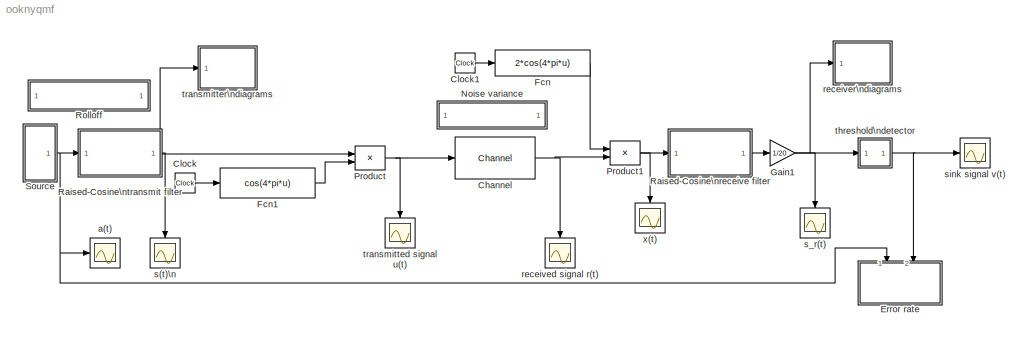
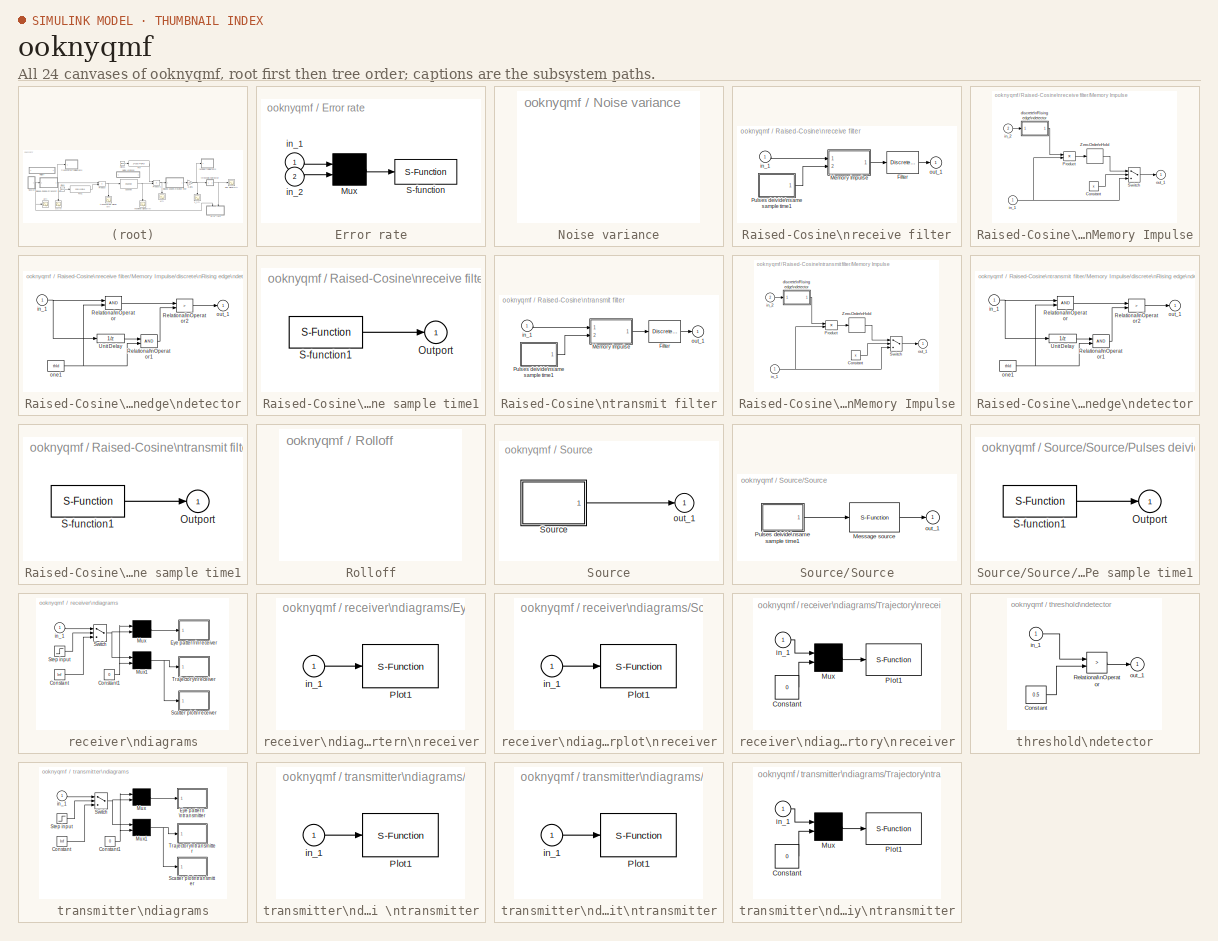
[diagram: thumbnail index - all 24 canvases of the model, root first then tree order]
MODEL ooknyqmf
KIND model
CONFIG AbsTol = 1e-6
CONFIG FixedStep = auto
CONFIG MaxStep = 0.05
CONFIG MinStep = 0.000001
CONFIG RelTol = 1e-6
CONFIG Solver = ode45
CONFIG SolverMode = Auto
CONFIG StartTime = 0.0
CONFIG StopTime = 999999
BLOCK [Reference] Channel  REF=librnew/Channel  (lib defined in mdl_aba7bc8d2a37)
  Ports = [1, 1]
  SourceBlock = librnew/Channel
  SourceType = AWGN channel, fixed parameter
  m = 0
  s = 12345
  variance = 0.001
BLOCK [Clock] Clock
  Decimation = 10
BLOCK [Clock] Clock1
  Decimation = 10
BLOCK [SubSystem] Error rate
  MaskCallbackString = |||
  MaskDescription = Use the input data from the 1st port as the reference signal to detect the number of errors and error rate of the 2nd signal.
  MaskDisplay = disp('Error\\nmeter')
  MaskEnableString = on,on,on,on
  MaskHelp = The signal from the first port must be a scalar. The second input port can be a vector with a delay to the first port signal. The comparison happens only at the sampling point.
  MaskIconFrame = on
  MaskIconOpaque = on
  MaskIconRotate = none
  MaskIconUnits = autoscale
  MaskInitialization = K=@1;num_lin=@2;TDelay=@3;Sample=@4;
  MaskPromptString = Bit per symbol:|Number of digits on display:|Delay between 1st port and 2nd port:|Sample time (sec):
  MaskStyleString = edit,edit,edit,edit
  MaskToolTipString = on,on,on,on
  MaskTunableValueString = on,on,on,on
  MaskType = Symbol/bit error counter
  MaskValueString = 1|10|12|1
  MaskVarAliasString = ,,,
  MaskVisibilityString = on,on,on,on
  Ports = [2]
  ShowPortLabels = off
  TreatAsAtomicUnit = off
BLOCK [Mux] Error rate/Mux
  Inputs = 2
  Ports = [2, 1]
BLOCK [S-Function] Error rate/S-function
  FunctionName = sbiterr
  Parameters = num_lin, K, TDelay, Sample
  Ports = [1, 1]
BLOCK [Inport] Error rate/in_1
BLOCK [Inport] Error rate/in_2
  Port = 2
BLOCK [Fcn] Fcn
  Expr = 2*cos(4*pi*u)
BLOCK [Fcn] Fcn1
  Expr = cos(4*pi*u)
BLOCK [Gain] Gain1
  Gain = 1/20
BLOCK [SubSystem] Noise variance
  MaskDisplay = disp('Noise variance')
  MaskIconFrame = on
  MaskIconOpaque = on
  MaskIconRotate = none
  MaskIconUnits = autoscale
  MaskType = noise
  OpenFcn = setnoise
  Ports = []
  ShowPortLabels = off
  TreatAsAtomicUnit = off
BLOCK [Product] Product
  Ports = [2, 1]
BLOCK [Product] Product1
  Ports = [2, 1]
BLOCK [SubSystem] Raised-Cosine\nreceive filter
  MaskCallbackString = |||||
  MaskDescription = Design a raised cosine filter and use it to filter the input signal.
  MaskDisplay = disp('R-C\\nfilter')
  MaskEnableString = on,on,on,on,on,on
  MaskHelp = This block designs a raised cosine filter using the specified parameter. The filter is used to filter the input signal. You can optionally use the sinc filter in the filtering computation.
  MaskIconFrame = on
  MaskIconOpaque = on
  MaskIconRotate = none
  MaskIconUnits = autoscale
  MaskInitialization = td=@1;if length(td)>1,off=td(2);td=td(1);else,off=0;end;ts=@2;R=@3;delay=@4;fil=@5;[num,den]=rcosine(1/td(1),1/ts(1),fil,R,delay);x=@6/2;
  MaskPromptString = Symbol interval (sec):|Computation sampling time (sec):|Filter rolloff factor:|Delay step (integer to multiply symbol interval):|Filter type (FIR or IIR) / (Normal or Sqrt):|With or without sinc filter (1 or 0, suggest 1):
  MaskStyleString = edit,edit,edit,edit,edit,edit
  MaskToolTipString = on,on,on,on,on,on
  MaskTunableValueString = on,on,on,on,on,on
  MaskType = R-C filter
  MaskValueString = 1|.05|0.82|6|'FIR'|0
  MaskVarAliasString = ,,,,,
  MaskVisibilityString = on,on,on,on,on,on
  Ports = [1, 1]
  ShowPortLabels = off
  TreatAsAtomicUnit = off
BLOCK [DiscreteFilter] Raised-Cosine\nreceive filter/Filter
  Denominator = den
  Numerator = num
  SampleTime = ts
BLOCK [SubSystem] Raised-Cosine\nreceive filter/Memory Impulse
  MaskCallbackString = |
  MaskDescription = 1/sinc filter:
  MaskDisplay = disp('1/sinc')
  MaskEnableString = on,on
  MaskHelp = When the threshold is greater than zero, this block outputs an impulse signal, which begins at the raising edge of the second input and lasts the holding time. The impulse holds a constant amplitude, which equals the amplitude of the first input at the begining of the impulse. A clock raising edge will trigger next impulse. When the threshold is less or equal to zero, this block faithfully outputs...<+17ch>
  MaskIconFrame = on
  MaskIconOpaque = on
  MaskIconRotate = none
  MaskIconUnits = autoscale
  MaskInitialization = ts=@1;thr=@2;x=thr>0;
  MaskPromptString = Holding time:|Threshold for clock pulse:
  MaskStyleString = edit,edit
  MaskToolTipString = on,on
  MaskTunableValueString = on,on
  MaskType = Impulse
  MaskValueString = ts|x
  MaskVarAliasString = ,
  MaskVisibilityString = on,on
  Ports = [2, 1]
  ShowPortLabels = off
  TreatAsAtomicUnit = off
BLOCK [Constant] Raised-Cosine\nreceive filter/Memory Impulse/Constant
  Value = x
BLOCK [Product] Raised-Cosine\nreceive filter/Memory Impulse/Product
  Ports = [2, 1]
BLOCK [Switch] Raised-Cosine\nreceive filter/Memory Impulse/Switch
  Threshold = .5
BLOCK [ZeroOrderHold] Raised-Cosine\nreceive filter/Memory Impulse/Zero-Order\nHold
  SampleTime = ts
BLOCK [SubSystem] Raised-Cosine\nreceive filter/Memory Impulse/discrete\nRising edge\ndetector
  MaskCallbackString = |
  MaskDescription = Rising edge detection:
  MaskDisplay = disp('Edge\\nDetector')
  MaskEnableString = on,on
  MaskHelp = When the input signal rising edge passed the given shreshold, this block outputs one, otherwise outputs zero.
  MaskIconFrame = on
  MaskIconOpaque = on
  MaskIconRotate = none
  MaskIconUnits = autoscale
  MaskInitialization = thld=@1;ts=@2;
  MaskPromptString = Threshold:|Sampling time:
  MaskStyleString = edit,edit
  MaskToolTipString = on,on
  MaskTunableValueString = on,on
  MaskType = Edge Detection
  MaskValueString = thr|ts
  MaskVarAliasString = ,
  MaskVisibilityString = on,on
  Ports = [1, 1]
  ShowPortLabels = off
  TreatAsAtomicUnit = off
BLOCK [RelationalOperator] Raised-Cosine\nreceive filter/Memory Impulse/discrete\nRising edge\ndetector/Relational\nOperator
BLOCK [RelationalOperator] Raised-Cosine\nreceive filter/Memory Impulse/discrete\nRising edge\ndetector/Relational\nOperator1
BLOCK [RelationalOperator] Raised-Cosine\nreceive filter/Memory Impulse/discrete\nRising edge\ndetector/Relational\nOperator2
  Operator = >
BLOCK [UnitDelay] Raised-Cosine\nreceive filter/Memory Impulse/discrete\nRising edge\ndetector/Unit Delay
  SampleTime = ts
BLOCK [Inport] Raised-Cosine\nreceive filter/Memory Impulse/discrete\nRising edge\ndetector/in_1
BLOCK [Constant] Raised-Cosine\nreceive filter/Memory Impulse/discrete\nRising edge\ndetector/one1
  Value = thld
BLOCK [Outport] Raised-Cosine\nreceive filter/Memory Impulse/discrete\nRising edge\ndetector/out_1
BLOCK [Inport] Raised-Cosine\nreceive filter/Memory Impulse/in_1
BLOCK [Inport] Raised-Cosine\nreceive filter/Memory Impulse/in_2
  Port = 2
BLOCK [Outport] Raised-Cosine\nreceive filter/Memory Impulse/out_1
BLOCK [SubSystem] Raised-Cosine\nreceive filter/Pulses deivide\nsame sample time1
  MaskCallbackString = ||
  MaskDescription = Vector pulses with sample rate of each pulse as Sample_time ./Divider.
  MaskDisplay = disp('Vector\\nPulse')
  MaskEnableString = on,on,on
  MaskHelp = This block generator a vector pulses. The output length is the same as the vector defined in \"Divider\". The ith element of the output has the sample time Sample_time/Divider(i). All elements in \"Divider\" must be integers.  <repeated x3 — deduplicated; at blocks: Pulses deivide\nsame sample time1>
  MaskIconFrame = on
  MaskIconOpaque = on
  MaskIconRotate = none
  MaskIconUnits = autoscale
  MaskInitialization = samp_time=@1;out_divid=@2;offset=@3;
  MaskPromptString = Sample time (scalar, sec):|Divider (integer vector):|Offset (have same dimension as Divider:
  MaskStyleString = edit,edit,edit
  MaskToolTipString = on,on,on
  MaskTunableValueString = on,on,on
  MaskType = Pulse generator
  MaskValueString = td|1|off
  MaskVarAliasString = ,,
  MaskVisibilityString = on,on,on
  Ports = [0, 1]
  ShowPortLabels = off
  TreatAsAtomicUnit = off
BLOCK [Outport] Raised-Cosine\nreceive filter/Pulses deivide\nsame sample time1/Outport
BLOCK [S-Function] Raised-Cosine\nreceive filter/Pulses deivide\nsame sample time1/S-function1
  FunctionName = homopuls
  Parameters = samp_time, out_divid, offset
  Ports = [1, 1]
BLOCK [Inport] Raised-Cosine\nreceive filter/in_1
BLOCK [Outport] Raised-Cosine\nreceive filter/out_1
BLOCK [SubSystem] Raised-Cosine\ntransmit filter
  MaskCallbackString = |||||
  MaskDescription = Design a raised cosine filter and use it to filter the input signal.
  MaskDisplay = disp('R-C\\nfilter')
  MaskEnableString = on,on,on,on,on,on
  MaskHelp = This block designs a raised cosine filter using the specified parameter. The filter is used to filter the input signal. You can optionally use the sinc filter in the filtering computation.
  MaskIconFrame = on
  MaskIconOpaque = on
  MaskIconRotate = none
  MaskIconUnits = autoscale
  MaskInitialization = td=@1;if length(td)>1,off=td(2);td=td(1);else,off=0;end;ts=@2;R=@3;delay=@4;fil=@5;[num,den]=rcosine(1/td(1),1/ts(1),fil,R,delay);x=@6/2;
  MaskPromptString = Symbol interval (sec):|Computation sampling time (sec):|Filter rolloff factor:|Delay step (integer to multiply symbol interval):|Filter type (FIR or IIR) / (Normal or Sqrt):|With or without sinc filter (1 or 0, suggest 1):
  MaskStyleString = edit,edit,edit,edit,edit,edit
  MaskToolTipString = on,on,on,on,on,on
  MaskTunableValueString = on,on,on,on,on,on
  MaskType = R-C filter
  MaskValueString = 1|.05|0.82|6|'FIR'|1
  MaskVarAliasString = ,,,,,
  MaskVisibilityString = on,on,on,on,on,on
  Ports = [1, 1]
  ShowPortLabels = off
  TreatAsAtomicUnit = off
BLOCK [DiscreteFilter] Raised-Cosine\ntransmit filter/Filter
  Denominator = den
  Numerator = num
  SampleTime = ts
BLOCK [SubSystem] Raised-Cosine\ntransmit filter/Memory Impulse
  MaskCallbackString = |
  MaskDescription = 1/sinc filter:
  MaskDisplay = disp('1/sinc')
  MaskEnableString = on,on
  MaskHelp = When the threshold is greater than zero, this block outputs an impulse signal, which begins at the raising edge of the second input and lasts the holding time. The impulse holds a constant amplitude, which equals the amplitude of the first input at the begining of the impulse. A clock raising edge will trigger next impulse. When the threshold is less or equal to zero, this block faithfully outputs...<+17ch>
  MaskIconFrame = on
  MaskIconOpaque = on
  MaskIconRotate = none
  MaskIconUnits = autoscale
  MaskInitialization = ts=@1;thr=@2;x=thr>0;
  MaskPromptString = Holding time:|Threshold for clock pulse:
  MaskStyleString = edit,edit
  MaskToolTipString = on,on
  MaskTunableValueString = on,on
  MaskType = Impulse
  MaskValueString = ts|x
  MaskVarAliasString = ,
  MaskVisibilityString = on,on
  Ports = [2, 1]
  ShowPortLabels = off
  TreatAsAtomicUnit = off
BLOCK [Constant] Raised-Cosine\ntransmit filter/Memory Impulse/Constant
  Value = x
BLOCK [Product] Raised-Cosine\ntransmit filter/Memory Impulse/Product
  Ports = [2, 1]
BLOCK [Switch] Raised-Cosine\ntransmit filter/Memory Impulse/Switch
  Threshold = .5
BLOCK [ZeroOrderHold] Raised-Cosine\ntransmit filter/Memory Impulse/Zero-Order\nHold
  SampleTime = ts
BLOCK [SubSystem] Raised-Cosine\ntransmit filter/Memory Impulse/discrete\nRising edge\ndetector
  MaskCallbackString = |
  MaskDescription = Rising edge detection:
  MaskDisplay = disp('Edge\\nDetector')
  MaskEnableString = on,on
  MaskHelp = When the input signal rising edge passed the given shreshold, this block outputs one, otherwise outputs zero.
  MaskIconFrame = on
  MaskIconOpaque = on
  MaskIconRotate = none
  MaskIconUnits = autoscale
  MaskInitialization = thld=@1;ts=@2;
  MaskPromptString = Threshold:|Sampling time:
  MaskStyleString = edit,edit
  MaskToolTipString = on,on
  MaskTunableValueString = on,on
  MaskType = Edge Detection
  MaskValueString = thr|ts
  MaskVarAliasString = ,
  MaskVisibilityString = on,on
  Ports = [1, 1]
  ShowPortLabels = off
  TreatAsAtomicUnit = off
BLOCK [RelationalOperator] Raised-Cosine\ntransmit filter/Memory Impulse/discrete\nRising edge\ndetector/Relational\nOperator
BLOCK [RelationalOperator] Raised-Cosine\ntransmit filter/Memory Impulse/discrete\nRising edge\ndetector/Relational\nOperator1
BLOCK [RelationalOperator] Raised-Cosine\ntransmit filter/Memory Impulse/discrete\nRising edge\ndetector/Relational\nOperator2
  Operator = >
BLOCK [UnitDelay] Raised-Cosine\ntransmit filter/Memory Impulse/discrete\nRising edge\ndetector/Unit Delay
  SampleTime = ts
BLOCK [Inport] Raised-Cosine\ntransmit filter/Memory Impulse/discrete\nRising edge\ndetector/in_1
BLOCK [Constant] Raised-Cosine\ntransmit filter/Memory Impulse/discrete\nRising edge\ndetector/one1
  Value = thld
BLOCK [Outport] Raised-Cosine\ntransmit filter/Memory Impulse/discrete\nRising edge\ndetector/out_1
BLOCK [Inport] Raised-Cosine\ntransmit filter/Memory Impulse/in_1
BLOCK [Inport] Raised-Cosine\ntransmit filter/Memory Impulse/in_2
  Port = 2
BLOCK [Outport] Raised-Cosine\ntransmit filter/Memory Impulse/out_1
BLOCK [SubSystem] Raised-Cosine\ntransmit filter/Pulses deivide\nsame sample time1
  MaskCallbackString = ||
  MaskDescription = Vector pulses with sample rate of each pulse as Sample_time ./Divider.
  MaskDisplay = disp('Vector\\nPulse')
  MaskEnableString = on,on,on
  MaskIconFrame = on
  MaskIconOpaque = on
  MaskIconRotate = none
  MaskIconUnits = autoscale
  MaskInitialization = samp_time=@1;out_divid=@2;offset=@3;
  MaskPromptString = Sample time (scalar, sec):|Divider (integer vector):|Offset (have same dimension as Divider:
  MaskStyleString = edit,edit,edit
  MaskToolTipString = on,on,on
  MaskTunableValueString = on,on,on
  MaskType = Pulse generator
  MaskValueString = td|1|off
  MaskVarAliasString = ,,
  MaskVisibilityString = on,on,on
  Ports = [0, 1]
  ShowPortLabels = off
  TreatAsAtomicUnit = off
BLOCK [Outport] Raised-Cosine\ntransmit filter/Pulses deivide\nsame sample time1/Outport
BLOCK [S-Function] Raised-Cosine\ntransmit filter/Pulses deivide\nsame sample time1/S-function1
  FunctionName = homopuls
  Parameters = samp_time, out_divid, offset
  Ports = [1, 1]
BLOCK [Inport] Raised-Cosine\ntransmit filter/in_1
BLOCK [Outport] Raised-Cosine\ntransmit filter/out_1
BLOCK [SubSystem] Rolloff
  MaskDisplay = disp('Rolloff-Factor')
  MaskIconFrame = on
  MaskIconOpaque = on
  MaskIconRotate = none
  MaskIconUnits = autoscale
  MaskType = rolloff
  OpenFcn = setrobin
  Ports = []
  ShowPortLabels = off
  TreatAsAtomicUnit = off
BLOCK [SubSystem] Source
  Ports = [0, 1]
  ShowPortLabels = off
  TreatAsAtomicUnit = off
BLOCK [SubSystem] Source/Source
  MaskCallbackString = |||
  MaskDescription = Read from a workspace variable at\nsampling time point.
  MaskDisplay = plot(0,0,100,100,x,y);disp('Rd wksp')
  MaskEnableString = on,on,on,on
  MaskHelp = This block reads from a workspace variable at a given sample time. The column number is the block output vector length. When the simulation reaches the end of the variable (eof), the block will cyclically output from the first row of the variable or output zeros based on the repeat flag entree.
  MaskIconFrame = on
  MaskIconOpaque = on
  MaskIconRotate = none
  MaskIconUnits = autoscale
  MaskInitialization = var=@1;td=@2;ts=td(1);if (length(td)>=2),off=td(2);else off=0;end;cyc=@3;ini=@4;[x,y]=srcsicon(7);
  MaskPromptString = Variable (column_number=block_output_length):|Data output sample time (sec):|Repeat flag (1: repeat read, 0: output zeros after eof).|Initial output:
  MaskStyleString = edit,edit,edit,edit
  MaskToolTipString = on,on,on,on
  MaskTunableValueString = on,on,on,on
  MaskType = Read from workspace
  MaskValueString = randint(1000,1,2)|1|1|1
  MaskVarAliasString = ,,,
  MaskVisibilityString = on,on,on,on
  Ports = [0, 1]
  ShowPortLabels = off
  TreatAsAtomicUnit = off
BLOCK [S-Function] Source/Source/Message source
  FunctionName = trigwksp
  MaskCallbackString = |||
  MaskDescription = The raising edge of input pulse trigger the block output the next row from the workspace variable.
  MaskDisplay = disp('Triggered\\nread')
  MaskEnableString = on,on,on,on
  MaskHelp = This block reads the data from a workspace variable. The output is refreshed at the raising edge of the input pulse.
  MaskIconFrame = on
  MaskIconOpaque = on
  MaskIconRotate = none
  MaskIconUnits = autoscale
  MaskInitialization = var=@1;thd=@2;cyclFlag=@3;ini=@4;
  MaskPromptString = Read the variable:|Threshold for the input pulse:|Cyclic read variable (1) or amend zeros (0).|Output before first trigger:
  MaskStyleString = edit,edit,edit,edit
  MaskToolTipString = on,on,on,on
  MaskTunableValueString = on,on,on,on
  MaskType = Read from workspace
  MaskValueString = var|.1|cyc|ini
  MaskVarAliasString = ,,,
  MaskVisibilityString = on,on,on,on
  Parameters = var,thd,cyclFlag,ini
  Ports = [1, 1]
BLOCK [SubSystem] Source/Source/Pulses deivide\nsame sample time1
  MaskCallbackString = ||
  MaskDescription = Vector pulses with sample rate of each pulse as Sample_time ./Divider.
  MaskDisplay = disp('Vector\\nPulse')
  MaskEnableString = on,on,on
  MaskIconFrame = on
  MaskIconOpaque = on
  MaskIconRotate = none
  MaskIconUnits = autoscale
  MaskInitialization = samp_time=@1;out_divid=@2;offset=@3;
  MaskPromptString = Sample time (scalar, sec):|Divider (integer vector):|Offset (have same dimension as Divider:
  MaskStyleString = edit,edit,edit
  MaskToolTipString = on,on,on
  MaskTunableValueString = on,on,on
  MaskType = Pulse generator
  MaskValueString = ts|1|off
  MaskVarAliasString = ,,
  MaskVisibilityString = on,on,on
  Ports = [0, 1]
  ShowPortLabels = off
  TreatAsAtomicUnit = off
BLOCK [Outport] Source/Source/Pulses deivide\nsame sample time1/Outport
BLOCK [S-Function] Source/Source/Pulses deivide\nsame sample time1/S-function1
  FunctionName = homopuls
  Parameters = samp_time, out_divid, offset
  Ports = [0, 1]
BLOCK [Outport] Source/Source/out_1
BLOCK [Outport] Source/out_1
BLOCK [Scope] a(t)
  DataFormat = Array
  NumInputPorts = 1
  Ports = [1]
  TimeRange = 25.000000
  YMax = 2
  YMin = -2
BLOCK [Scope] received signal r(t)
  DataFormat = Array
  NumInputPorts = 1
  Ports = [1]
  TimeRange = 25.000000
  YMax = 2
  YMin = -2
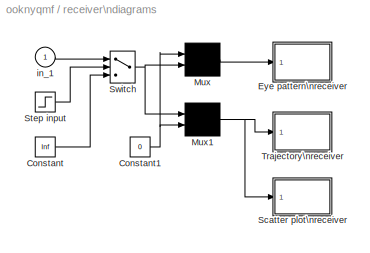
BLOCK [SubSystem] receiver\ndiagrams
  MaskCallbackString = ||
  MaskDescription = Eye pattern, signal space trajectory and scatter plot.
  MaskDisplay = plot(0,0,100,100,x,y)
  MaskEnableString = on,on,on
  MaskIconFrame = on
  MaskIconOpaque = on
  MaskIconRotate = none
  MaskIconUnits = autoscale
  MaskInitialization = [x, y] = srcsicon(10);
  MaskPromptString = Plot start time:|Samples per time slot (2*T):|Decision offset:
  MaskStyleString = edit,edit,edit
  MaskToolTipString = on,on,on
  MaskTunableValueString = on,on,on
  MaskType = Diagrams
  MaskValueString = 12|40|0
  MaskVarAliasString = ,,
  MaskVariables = starttime=@1;anzahl=@2;offset=@3;
  MaskVisibilityString = on,on,on
  Ports = [1]
  ShowPortLabels = off
  TreatAsAtomicUnit = off
BLOCK [Constant] receiver\ndiagrams/Constant
  Value = Inf
BLOCK [Constant] receiver\ndiagrams/Constant1
  Value = 0
BLOCK [SubSystem] receiver\ndiagrams/Eye pattern\nreceiver
  CopyFcn = eyesampl([],[],[],'CopyBlock')
  DeleteFcn = eyesampl([],[],[],'DeleteBlock')
  LoadFcn = eyesampl([],[],[],'LoadBlock')
  MaskCallbackString = |||||
  MaskDescription = Produce eye-pattern diagram and/or scatter plot.
  MaskDisplay = plot(0,0,100,100,x,y);
  MaskEnableString = on,on,on,on,on,on
  MaskHelp = This plot opens one, or two plots by assigning the line type parameters. The scatter plot point is selected by the decision point in the first parameter entry. A decision line is drawn in the eye-pattern diagram. The plot is updated at the plot update sample time point.  <repeated x4 — deduplicated; at blocks: Eye pattern\nreceiver, Scatter plot\nreceiver, Eye pattern \ntransmitter, Scatter plot\ntransmitter>
  MaskIconFrame = on
  MaskIconOpaque = on
  MaskIconRotate = none
  MaskIconUnits = autoscale
  MaskInitialization = time_range=@1;boundary=@2;kept_length=@3;eye_line=@4;scatter_line=@5;two_d_line=@6;[x,y]=srcsicon(10);
  MaskPromptString = [Symbol interval, plot offset, decision point offset]:|Lower and upper bound of in-coming signal (1x2 vector):|Number of saved traces:|Line-type for eye-pattern diagram (0 for no plot):|Line-type for scatter plot (0 for no plot):|Plot update sample time:  <repeated x4 — deduplicated; at blocks: Eye pattern\nreceiver, Scatter plot\nreceiver, Eye pattern \ntransmitter, Scatter plot\ntransmitter>
  MaskStyleString = edit,edit,edit,edit,edit,edit
  MaskToolTipString = on,on,on,on,on,on
  MaskTunableValueString = on,on,on,on,on,on
  MaskType = Eye-diagram/scatter plot
  MaskValueString = [2 0 1+offset]|[-1.5 1.5]|0|'w-/r-'|0|2/anzahl
  MaskVarAliasString = ,,,,,
  MaskVisibilityString = on,on,on,on,on,on
  NameChangeFcn = eyesampl([],[],[],'NameChange')
  Ports = [1]
  ShowPortLabels = off
  StartFcn = eyesampl([],[],[],'Start')
  StopFcn = eyesampl([],[],[],'Stop')
  TreatAsAtomicUnit = off
BLOCK [S-Function] receiver\ndiagrams/Eye pattern\nreceiver/Plot1
  FunctionName = eyesampl
  Parameters = time_range, boundary, kept_length, eye_line, scatter_line, two_d_line
  Ports = [1]
BLOCK [Inport] receiver\ndiagrams/Eye pattern\nreceiver/in_1
BLOCK [Mux] receiver\ndiagrams/Mux
  Inputs = 2
  Ports = [2, 1]
BLOCK [Mux] receiver\ndiagrams/Mux1
  Inputs = 2
  Ports = [2, 1]
BLOCK [SubSystem] receiver\ndiagrams/Scatter plot\nreceiver
  CopyFcn = eyesampl([],[],[],'CopyBlock')
  DeleteFcn = eyesampl([],[],[],'DeleteBlock')
  LoadFcn = eyesampl([],[],[],'LoadBlock')
  MaskCallbackString = |||||
  MaskDescription = Produce eye-pattern diagram and/or scatter plot.
  MaskDisplay = plot(0,0,100,100,x,y);
  MaskEnableString = on,on,on,on,on,on
  MaskIconFrame = on
  MaskIconOpaque = on
  MaskIconRotate = none
  MaskIconUnits = autoscale
  MaskInitialization = time_range=@1;boundary=@2;kept_length=@3;eye_line=@4;scatter_line=@5;two_d_line=@6;[x,y]=srcsicon(10);
  MaskStyleString = edit,edit,edit,edit,edit,edit
  MaskToolTipString = on,on,on,on,on,on
  MaskTunableValueString = on,on,on,on,on,on
  MaskType = Eye-diagram/scatter plot
  MaskValueString = [1 .5 .999]|[-1.5 1.5]|0|0|'b.'|[.5 offset]
  MaskVarAliasString = ,,,,,
  MaskVisibilityString = on,on,on,on,on,on
  NameChangeFcn = eyesampl([],[],[],'NameChange')
  Ports = [1]
  ShowPortLabels = off
  StartFcn = eyesampl([],[],[],'Start')
  StopFcn = eyesampl([],[],[],'Stop')
  TreatAsAtomicUnit = off
BLOCK [S-Function] receiver\ndiagrams/Scatter plot\nreceiver/Plot1
  FunctionName = eyesampl
  Parameters = time_range, boundary, kept_length, eye_line, scatter_line, two_d_line
  Ports = [1]
BLOCK [Inport] receiver\ndiagrams/Scatter plot\nreceiver/in_1
BLOCK [Step] receiver\ndiagrams/Step input
  SampleTime = 1
  Time = starttime
BLOCK [Switch] receiver\ndiagrams/Switch
  Threshold = 1
BLOCK [SubSystem] receiver\ndiagrams/Trajectory\nreceiver
  CopyFcn = eyediasi([],[],[],'CopyBlock')
  DeleteFcn = eyediasi([],[],[],'DeleteBlock')
  LoadFcn = eyediasi([],[],[],'LoadBlock')
  MaskCallbackString = |||||
  MaskDescription = Produce eye-pattern diagram/scatter\nplot/x-y plot with the rising edge of the second input as the decision line.
  MaskDisplay = plot(0,0,100,100,x,y,v,w);
  MaskEnableString = on,on,on,on,on,on
  MaskHelp = This plot opens one, two, or three plots by assigning the line type parameters. The scatter plot point is selected by the rising edge of a trigger signal. A decision line is drawn at the rising edge of the trigger signal.
  MaskIconFrame = on
  MaskIconOpaque = on
  MaskIconRotate = none
  MaskIconUnits = autoscale
  MaskInitialization = time_range=@1;boundary=@2;kept_length=@3;eye_line=@4;scatter_line=@5;two_d_line=@6;[x,y]=srcsicon(10);[v,w]=trigicon(0,25,get_param(gcb,'orientation'),2);
  MaskPromptString = Eye-pattern plot time frame:|Lower and upper bound of in-coming signal (1x2 vector):|Number of saved traces:|Line-type for eye-pattern diagram (0 for no plot):|Line-type for scatter plot (0 for no plot):|Line-type for x-y plot (0 for no plot):
  MaskStyleString = edit,edit,edit,edit,edit,edit
  MaskToolTipString = on,on,on,on,on,on
  MaskTunableValueString = on,on,on,on,on,on
  MaskType = Eye-diagram/scatter plot
  MaskValueString = [2 0 1]|[-1.5 1.5]|0|0|0|'g-'
  MaskVarAliasString = ,,,,,
  MaskVisibilityString = on,on,on,on,on,on
  NameChangeFcn = eyediasi([],[],[],'NameChange')
  Ports = [1]
  ShowPortLabels = off
  StartFcn = eyediasi([],[],[],'Start')
  StopFcn = eyediasi([],[],[],'Stop')
  TreatAsAtomicUnit = off
BLOCK [Constant] receiver\ndiagrams/Trajectory\nreceiver/Constant
  Value = 0
BLOCK [Mux] receiver\ndiagrams/Trajectory\nreceiver/Mux
  Inputs = 2
  Ports = [2, 1]
BLOCK [S-Function] receiver\ndiagrams/Trajectory\nreceiver/Plot1
  FunctionName = eyediasi
  Parameters = time_range, boundary, kept_length, eye_line, scatter_line, two_d_line
  Ports = [1]
BLOCK [Inport] receiver\ndiagrams/Trajectory\nreceiver/in_1
BLOCK [Inport] receiver\ndiagrams/in_1
BLOCK [Scope] s(t)\n
  DataFormat = Array
  NumInputPorts = 1
  Ports = [1]
  TimeRange = 25.000000
  YMax = 2
  YMin = -2
BLOCK [Scope] s_r(t)
  DataFormat = Array
  NumInputPorts = 1
  Ports = [1]
  TimeRange = 25.000000
  YMax = 2
  YMin = -2
BLOCK [Scope] sink signal v(t)
  DataFormat = Array
  NumInputPorts = 1
  Ports = [1]
  TimeRange = 25.000000
  YMax = 2
  YMin = -2
BLOCK [SubSystem] threshold\ndetector
  Ports = [1, 1]
  ShowPortLabels = off
  TreatAsAtomicUnit = off
BLOCK [Constant] threshold\ndetector/Constant
  Value = 0.5
BLOCK [RelationalOperator] threshold\ndetector/Relational\nOperator
  Operator = >
BLOCK [Inport] threshold\ndetector/in_1
BLOCK [Outport] threshold\ndetector/out_1
BLOCK [Scope] transmitted signal u(t)
  DataFormat = Array
  NumInputPorts = 1
  Ports = [1]
  TimeRange = 25.000000
  YMax = 2
  YMin = -2
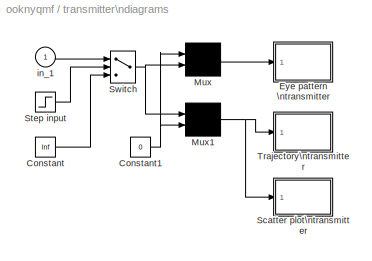
BLOCK [SubSystem] transmitter\ndiagrams
  MaskCallbackString = ||
  MaskDescription = Eye pattern,  signal-space trajectory and scatter plot
  MaskDisplay = plot(0,0,100,100,x,y)
  MaskEnableString = on,on,on
  MaskIconFrame = on
  MaskIconOpaque = on
  MaskIconRotate = none
  MaskIconUnits = autoscale
  MaskInitialization = [x, y] = srcsicon(10);
  MaskPromptString = Plot start time:|samples per time slot|decision offset
  MaskStyleString = edit,edit,edit
  MaskToolTipString = on,on,on
  MaskTunableValueString = on,on,on
  MaskType = Diagrams
  MaskValueString = 6|40|0
  MaskVarAliasString = ,,
  MaskVariables = starttime=@1;anzahl=@2;offset=@3;
  MaskVisibilityString = on,on,on
  Ports = [1]
  ShowPortLabels = off
  TreatAsAtomicUnit = off
BLOCK [Constant] transmitter\ndiagrams/Constant
  Value = Inf
BLOCK [Constant] transmitter\ndiagrams/Constant1
  Value = 0
BLOCK [SubSystem] transmitter\ndiagrams/Eye pattern \ntransmitter
  CopyFcn = eyesampl([],[],[],'CopyBlock')
  DeleteFcn = eyesampl([],[],[],'DeleteBlock')
  LoadFcn = eyesampl([],[],[],'LoadBlock')
  MaskCallbackString = |||||
  MaskDescription = Produce eye-pattern diagram and/or scatter plot.
  MaskDisplay = plot(0,0,100,100,x,y);
  MaskEnableString = on,on,on,on,on,on
  MaskIconFrame = on
  MaskIconOpaque = on
  MaskIconRotate = none
  MaskIconUnits = autoscale
  MaskInitialization = time_range=@1;boundary=@2;kept_length=@3;eye_line=@4;scatter_line=@5;two_d_line=@6;[x,y]=srcsicon(10);
  MaskStyleString = edit,edit,edit,edit,edit,edit
  MaskToolTipString = on,on,on,on,on,on
  MaskTunableValueString = on,on,on,on,on,on
  MaskType = Eye-diagram/scatter plot
  MaskValueString = [2 0 1+offset]|[-1.5 1.5]|0|'w-/r-'|0|2/anzahl
  MaskVarAliasString = ,,,,,
  MaskVisibilityString = on,on,on,on,on,on
  NameChangeFcn = eyesampl([],[],[],'NameChange')
  Ports = [1]
  ShowPortLabels = off
  StartFcn = eyesampl([],[],[],'Start')
  StopFcn = eyesampl([],[],[],'Stop')
  TreatAsAtomicUnit = off
BLOCK [S-Function] transmitter\ndiagrams/Eye pattern \ntransmitter/Plot1
  FunctionName = eyesampl
  Parameters = time_range, boundary, kept_length, eye_line, scatter_line, two_d_line
  Ports = [1]
BLOCK [Inport] transmitter\ndiagrams/Eye pattern \ntransmitter/in_1
BLOCK [Mux] transmitter\ndiagrams/Mux
  Inputs = 2
  Ports = [2, 1]
BLOCK [Mux] transmitter\ndiagrams/Mux1
  Inputs = 2
  Ports = [2, 1]
BLOCK [SubSystem] transmitter\ndiagrams/Scatter plot\ntransmitter
  CopyFcn = eyesampl([],[],[],'CopyBlock')
  DeleteFcn = eyesampl([],[],[],'DeleteBlock')
  LoadFcn = eyesampl([],[],[],'LoadBlock')
  MaskCallbackString = |||||
  MaskDescription = Produce eye-pattern diagram and/or scatter plot.
  MaskDisplay = plot(0,0,100,100,x,y);
  MaskEnableString = on,on,on,on,on,on
  MaskIconFrame = on
  MaskIconOpaque = on
  MaskIconRotate = none
  MaskIconUnits = autoscale
  MaskInitialization = time_range=@1;boundary=@2;kept_length=@3;eye_line=@4;scatter_line=@5;two_d_line=@6;[x,y]=srcsicon(10);
  MaskStyleString = edit,edit,edit,edit,edit,edit
  MaskToolTipString = on,on,on,on,on,on
  MaskTunableValueString = on,on,on,on,on,on
  MaskType = Eye-diagram/scatter plot
  MaskValueString = [1 .5 .999]|[-1.5 1.5]|0|0|'b.'|[.5 offset]
  MaskVarAliasString = ,,,,,
  MaskVisibilityString = on,on,on,on,on,on
  NameChangeFcn = eyesampl([],[],[],'NameChange')
  Ports = [1]
  ShowPortLabels = off
  StartFcn = eyesampl([],[],[],'Start')
  StopFcn = eyesampl([],[],[],'Stop')
  TreatAsAtomicUnit = off
BLOCK [S-Function] transmitter\ndiagrams/Scatter plot\ntransmitter/Plot1
  FunctionName = eyesampl
  Parameters = time_range, boundary, kept_length, eye_line, scatter_line, two_d_line
  Ports = [1]
BLOCK [Inport] transmitter\ndiagrams/Scatter plot\ntransmitter/in_1
BLOCK [Step] transmitter\ndiagrams/Step input
  SampleTime = 1
  Time = starttime
BLOCK [Switch] transmitter\ndiagrams/Switch
  Threshold = 1
BLOCK [SubSystem] transmitter\ndiagrams/Trajectory\ntransmitter
  CopyFcn = eyediasi([],[],[],'CopyBlock')
  DeleteFcn = eyediasi([],[],[],'DeleteBlock')
  LoadFcn = eyediasi([],[],[],'LoadBlock')
  MaskCallbackString = |||||
  MaskDescription = Produce eye-pattern diagram/scatter\nplot/x-y plot with the rising edge of the second input as the decision line.
  MaskDisplay = plot(0,0,100,100,x,y,v,w);
  MaskEnableString = on,on,on,on,on,on
  MaskHelp = This plot opens one, two, or three plots by assigning the line type parameters. The scatter plot point is selected by the rising edge of a trigger signal. A decision line is drawn at the rising edge of the trigger signal.
  MaskIconFrame = on
  MaskIconOpaque = on
  MaskIconRotate = none
  MaskIconUnits = autoscale
  MaskInitialization = time_range=@1;boundary=@2;kept_length=@3;eye_line=@4;scatter_line=@5;two_d_line=@6;[x,y]=srcsicon(10);[v,w]=trigicon(0,25,get_param(gcb,'orientation'),2);
  MaskPromptString = Eye-pattern plot time frame:|Lower and upper bound of in-coming signal (1x2 vector):|Number of saved traces:|Line-type for eye-pattern diagram (0 for no plot):|Line-type for scatter plot (0 for no plot):|Line-type for x-y plot (0 for no plot):
  MaskStyleString = edit,edit,edit,edit,edit,edit
  MaskToolTipString = on,on,on,on,on,on
  MaskTunableValueString = on,on,on,on,on,on
  MaskType = Eye-diagram/scatter plot
  MaskValueString = [2 0 1]|[-1.5 1.5]|0|0|0|'g-'
  MaskVarAliasString = ,,,,,
  MaskVisibilityString = on,on,on,on,on,on
  NameChangeFcn = eyediasi([],[],[],'NameChange')
  Ports = [1]
  ShowPortLabels = off
  StartFcn = eyediasi([],[],[],'Start')
  StopFcn = eyediasi([],[],[],'Stop')
  TreatAsAtomicUnit = off
BLOCK [Constant] transmitter\ndiagrams/Trajectory\ntransmitter/Constant
  Value = 0
BLOCK [Mux] transmitter\ndiagrams/Trajectory\ntransmitter/Mux
  Inputs = 2
  Ports = [2, 1]
BLOCK [S-Function] transmitter\ndiagrams/Trajectory\ntransmitter/Plot1
  FunctionName = eyediasi
  Parameters = time_range, boundary, kept_length, eye_line, scatter_line, two_d_line
  Ports = [1]
BLOCK [Inport] transmitter\ndiagrams/Trajectory\ntransmitter/in_1
BLOCK [Inport] transmitter\ndiagrams/in_1
BLOCK [Scope] x(t)
  DataFormat = Array
  NumInputPorts = 1
  Ports = [1]
  TimeRange = 25.000000
  YMax = 2
  YMin = -2
NET Channel:1 -> Product1:2, received signal r(t):1
LINE Clock1:1 -> Fcn:1
LINE Clock:1 -> Fcn1:1
LINE Error rate/Mux:1 -> Error rate/S-function:1
LINE Error rate/in_1:1 -> Error rate/Mux:1
LINE Error rate/in_2:1 -> Error rate/Mux:2
LINE Fcn1:1 -> Product:2
LINE Fcn:1 -> Product1:1
NET Gain1:1 -> receiver\ndiagrams:1, s_r(t):1, threshold\ndetector:1
NET Product1:1 -> Raised-Cosine\nreceive filter:1, x(t):1
NET Product:1 -> Channel:1, transmitted signal u(t):1
LINE Raised-Cosine\nreceive filter/Filter:1 -> Raised-Cosine\nreceive filter/out_1:1
LINE Raised-Cosine\nreceive filter/Memory Impulse/Constant:1 -> Raised-Cosine\nreceive filter/Memory Impulse/Switch:2
LINE Raised-Cosine\nreceive filter/Memory Impulse/Product:1 -> Raised-Cosine\nreceive filter/Memory Impulse/Zero-Order\nHold:1
LINE Raised-Cosine\nreceive filter/Memory Impulse/Switch:1 -> Raised-Cosine\nreceive filter/Memory Impulse/out_1:1
LINE Raised-Cosine\nreceive filter/Memory Impulse/Zero-Order\nHold:1 -> Raised-Cosine\nreceive filter/Memory Impulse/Switch:1
LINE Raised-Cosine\nreceive filter/Memory Impulse/discrete\nRising edge\ndetector/Relational\nOperator1:1 -> Raised-Cosine\nreceive filter/Memory Impulse/discrete\nRising edge\ndetector/Relational\nOperator2:2
LINE Raised-Cosine\nreceive filter/Memory Impulse/discrete\nRising edge\ndetector/Relational\nOperator2:1 -> Raised-Cosine\nreceive filter/Memory Impulse/discrete\nRising edge\ndetector/out_1:1
LINE Raised-Cosine\nreceive filter/Memory Impulse/discrete\nRising edge\ndetector/Relational\nOperator:1 -> Raised-Cosine\nreceive filter/Memory Impulse/discrete\nRising edge\ndetector/Relational\nOperator2:1
LINE Raised-Cosine\nreceive filter/Memory Impulse/discrete\nRising edge\ndetector/Unit Delay:1 -> Raised-Cosine\nreceive filter/Memory Impulse/discrete\nRising edge\ndetector/Relational\nOperator1:1
NET Raised-Cosine\nreceive filter/Memory Impulse/discrete\nRising edge\ndetector/in_1:1 -> Raised-Cosine\nreceive filter/Memory Impulse/discrete\nRising edge\ndetector/Relational\nOperator:1, Raised-Cosine\nreceive filter/Memory Impulse/discrete\nRising edge\ndetector/Unit Delay:1
NET Raised-Cosine\nreceive filter/Memory Impulse/discrete\nRising edge\ndetector/one1:1 -> Raised-Cosine\nreceive filter/Memory Impulse/discrete\nRising edge\ndetector/Relational\nOperator1:2, Raised-Cosine\nreceive filter/Memory Impulse/discrete\nRising edge\ndetector/Relational\nOperator:2
LINE Raised-Cosine\nreceive filter/Memory Impulse/discrete\nRising edge\ndetector:1 -> Raised-Cosine\nreceive filter/Memory Impulse/Product:1
NET Raised-Cosine\nreceive filter/Memory Impulse/in_1:1 -> Raised-Cosine\nreceive filter/Memory Impulse/Product:2, Raised-Cosine\nreceive filter/Memory Impulse/Switch:3
LINE Raised-Cosine\nreceive filter/Memory Impulse/in_2:1 -> Raised-Cosine\nreceive filter/Memory Impulse/discrete\nRising edge\ndetector:1
LINE Raised-Cosine\nreceive filter/Memory Impulse:1 -> Raised-Cosine\nreceive filter/Filter:1
LINE Raised-Cosine\nreceive filter/Pulses deivide\nsame sample time1/S-function1:1 -> Raised-Cosine\nreceive filter/Pulses deivide\nsame sample time1/Outport:1
LINE Raised-Cosine\nreceive filter/Pulses deivide\nsame sample time1:1 -> Raised-Cosine\nreceive filter/Memory Impulse:2
LINE Raised-Cosine\nreceive filter/in_1:1 -> Raised-Cosine\nreceive filter/Memory Impulse:1
LINE Raised-Cosine\nreceive filter:1 -> Gain1:1
LINE Raised-Cosine\ntransmit filter/Filter:1 -> Raised-Cosine\ntransmit filter/out_1:1
LINE Raised-Cosine\ntransmit filter/Memory Impulse/Constant:1 -> Raised-Cosine\ntransmit filter/Memory Impulse/Switch:2
LINE Raised-Cosine\ntransmit filter/Memory Impulse/Product:1 -> Raised-Cosine\ntransmit filter/Memory Impulse/Zero-Order\nHold:1
LINE Raised-Cosine\ntransmit filter/Memory Impulse/Switch:1 -> Raised-Cosine\ntransmit filter/Memory Impulse/out_1:1
LINE Raised-Cosine\ntransmit filter/Memory Impulse/Zero-Order\nHold:1 -> Raised-Cosine\ntransmit filter/Memory Impulse/Switch:1
LINE Raised-Cosine\ntransmit filter/Memory Impulse/discrete\nRising edge\ndetector/Relational\nOperator1:1 -> Raised-Cosine\ntransmit filter/Memory Impulse/discrete\nRising edge\ndetector/Relational\nOperator2:2
LINE Raised-Cosine\ntransmit filter/Memory Impulse/discrete\nRising edge\ndetector/Relational\nOperator2:1 -> Raised-Cosine\ntransmit filter/Memory Impulse/discrete\nRising edge\ndetector/out_1:1
LINE Raised-Cosine\ntransmit filter/Memory Impulse/discrete\nRising edge\ndetector/Relational\nOperator:1 -> Raised-Cosine\ntransmit filter/Memory Impulse/discrete\nRising edge\ndetector/Relational\nOperator2:1
LINE Raised-Cosine\ntransmit filter/Memory Impulse/discrete\nRising edge\ndetector/Unit Delay:1 -> Raised-Cosine\ntransmit filter/Memory Impulse/discrete\nRising edge\ndetector/Relational\nOperator1:1
NET Raised-Cosine\ntransmit filter/Memory Impulse/discrete\nRising edge\ndetector/in_1:1 -> Raised-Cosine\ntransmit filter/Memory Impulse/discrete\nRising edge\ndetector/Relational\nOperator:1, Raised-Cosine\ntransmit filter/Memory Impulse/discrete\nRising edge\ndetector/Unit Delay:1
NET Raised-Cosine\ntransmit filter/Memory Impulse/discrete\nRising edge\ndetector/one1:1 -> Raised-Cosine\ntransmit filter/Memory Impulse/discrete\nRising edge\ndetector/Relational\nOperator1:2, Raised-Cosine\ntransmit filter/Memory Impulse/discrete\nRising edge\ndetector/Relational\nOperator:2
LINE Raised-Cosine\ntransmit filter/Memory Impulse/discrete\nRising edge\ndetector:1 -> Raised-Cosine\ntransmit filter/Memory Impulse/Product:1
NET Raised-Cosine\ntransmit filter/Memory Impulse/in_1:1 -> Raised-Cosine\ntransmit filter/Memory Impulse/Product:2, Raised-Cosine\ntransmit filter/Memory Impulse/Switch:3
LINE Raised-Cosine\ntransmit filter/Memory Impulse/in_2:1 -> Raised-Cosine\ntransmit filter/Memory Impulse/discrete\nRising edge\ndetector:1
LINE Raised-Cosine\ntransmit filter/Memory Impulse:1 -> Raised-Cosine\ntransmit filter/Filter:1
LINE Raised-Cosine\ntransmit filter/Pulses deivide\nsame sample time1/S-function1:1 -> Raised-Cosine\ntransmit filter/Pulses deivide\nsame sample time1/Outport:1
LINE Raised-Cosine\ntransmit filter/Pulses deivide\nsame sample time1:1 -> Raised-Cosine\ntransmit filter/Memory Impulse:2
LINE Raised-Cosine\ntransmit filter/in_1:1 -> Raised-Cosine\ntransmit filter/Memory Impulse:1
NET Raised-Cosine\ntransmit filter:1 -> Product:1, s(t)\n:1, transmitter\ndiagrams:1
LINE Source/Source/Message source:1 -> Source/Source/out_1:1
LINE Source/Source/Pulses deivide\nsame sample time1/S-function1:1 -> Source/Source/Pulses deivide\nsame sample time1/Outport:1
LINE Source/Source/Pulses deivide\nsame sample time1:1 -> Source/Source/Message source:1
LINE Source/Source:1 -> Source/out_1:1
NET Source:1 -> Error rate:1, Raised-Cosine\ntransmit filter:1, a(t):1
NET receiver\ndiagrams/Constant1:1 -> receiver\ndiagrams/Mux1:2, receiver\ndiagrams/Mux:1
LINE receiver\ndiagrams/Constant:1 -> receiver\ndiagrams/Switch:3
LINE receiver\ndiagrams/Eye pattern\nreceiver/in_1:1 -> receiver\ndiagrams/Eye pattern\nreceiver/Plot1:1
NET receiver\ndiagrams/Mux1:1 -> receiver\ndiagrams/Scatter plot\nreceiver:1, receiver\ndiagrams/Trajectory\nreceiver:1
LINE receiver\ndiagrams/Mux:1 -> receiver\ndiagrams/Eye pattern\nreceiver:1
LINE receiver\ndiagrams/Scatter plot\nreceiver/in_1:1 -> receiver\ndiagrams/Scatter plot\nreceiver/Plot1:1
LINE receiver\ndiagrams/Step input:1 -> receiver\ndiagrams/Switch:2
NET receiver\ndiagrams/Switch:1 -> receiver\ndiagrams/Mux1:1, receiver\ndiagrams/Mux:2
LINE receiver\ndiagrams/Trajectory\nreceiver/Constant:1 -> receiver\ndiagrams/Trajectory\nreceiver/Mux:2
LINE receiver\ndiagrams/Trajectory\nreceiver/Mux:1 -> receiver\ndiagrams/Trajectory\nreceiver/Plot1:1
LINE receiver\ndiagrams/Trajectory\nreceiver/in_1:1 -> receiver\ndiagrams/Trajectory\nreceiver/Mux:1
LINE receiver\ndiagrams/in_1:1 -> receiver\ndiagrams/Switch:1
LINE threshold\ndetector/Constant:1 -> threshold\ndetector/Relational\nOperator:2
LINE threshold\ndetector/Relational\nOperator:1 -> threshold\ndetector/out_1:1
LINE threshold\ndetector/in_1:1 -> threshold\ndetector/Relational\nOperator:1
NET threshold\ndetector:1 -> Error rate:2, sink signal v(t):1
NET transmitter\ndiagrams/Constant1:1 -> transmitter\ndiagrams/Mux1:2, transmitter\ndiagrams/Mux:1
LINE transmitter\ndiagrams/Constant:1 -> transmitter\ndiagrams/Switch:3
LINE transmitter\ndiagrams/Eye pattern \ntransmitter/in_1:1 -> transmitter\ndiagrams/Eye pattern \ntransmitter/Plot1:1
NET transmitter\ndiagrams/Mux1:1 -> transmitter\ndiagrams/Scatter plot\ntransmitter:1, transmitter\ndiagrams/Trajectory\ntransmitter:1
LINE transmitter\ndiagrams/Mux:1 -> transmitter\ndiagrams/Eye pattern \ntransmitter:1
LINE transmitter\ndiagrams/Scatter plot\ntransmitter/in_1:1 -> transmitter\ndiagrams/Scatter plot\ntransmitter/Plot1:1
LINE transmitter\ndiagrams/Step input:1 -> transmitter\ndiagrams/Switch:2
NET transmitter\ndiagrams/Switch:1 -> transmitter\ndiagrams/Mux1:1, transmitter\ndiagrams/Mux:2
LINE transmitter\ndiagrams/Trajectory\ntransmitter/Constant:1 -> transmitter\ndiagrams/Trajectory\ntransmitter/Mux:2
LINE transmitter\ndiagrams/Trajectory\ntransmitter/Mux:1 -> transmitter\ndiagrams/Trajectory\ntransmitter/Plot1:1
LINE transmitter\ndiagrams/Trajectory\ntransmitter/in_1:1 -> transmitter\ndiagrams/Trajectory\ntransmitter/Mux:1
LINE transmitter\ndiagrams/in_1:1 -> transmitter\ndiagrams/Switch:1
note: NET lines group one-source signal fan-out (src -> all destinations, sorted); 1:1 wires keep LINE
